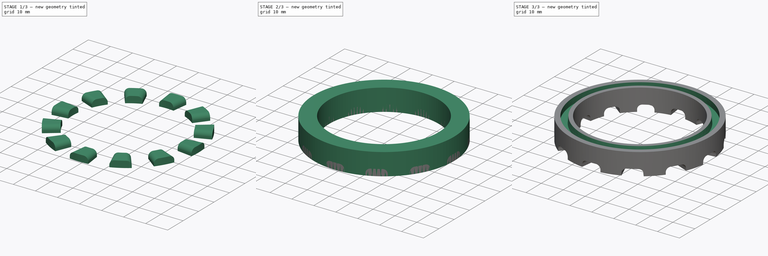
[diagram: build sequence overview — one tinted view per stage of 3, left to right]
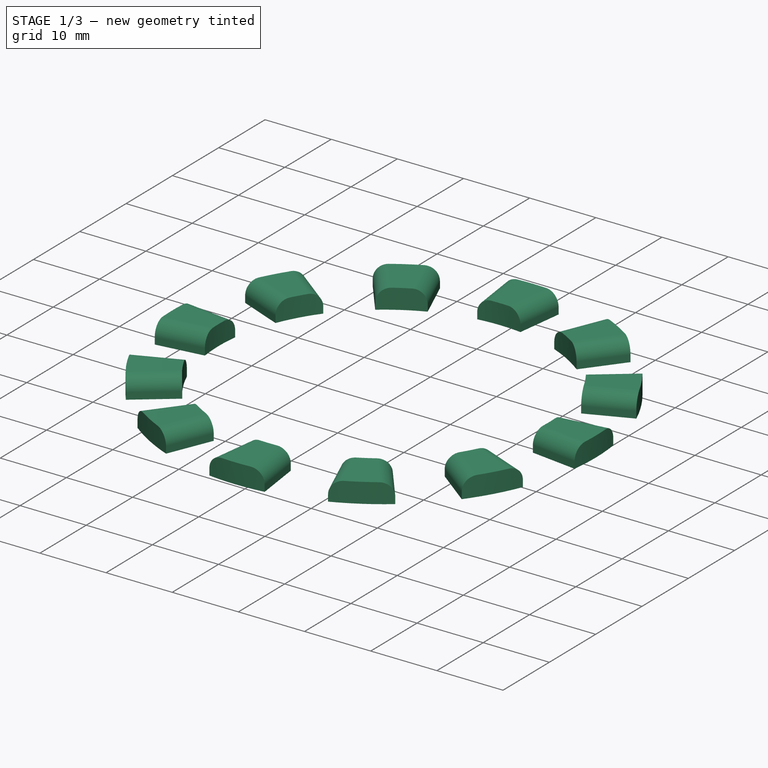
[diagram: stage 1 of 3 — iso view after this stage's code; geometry added in this stage tinted green]
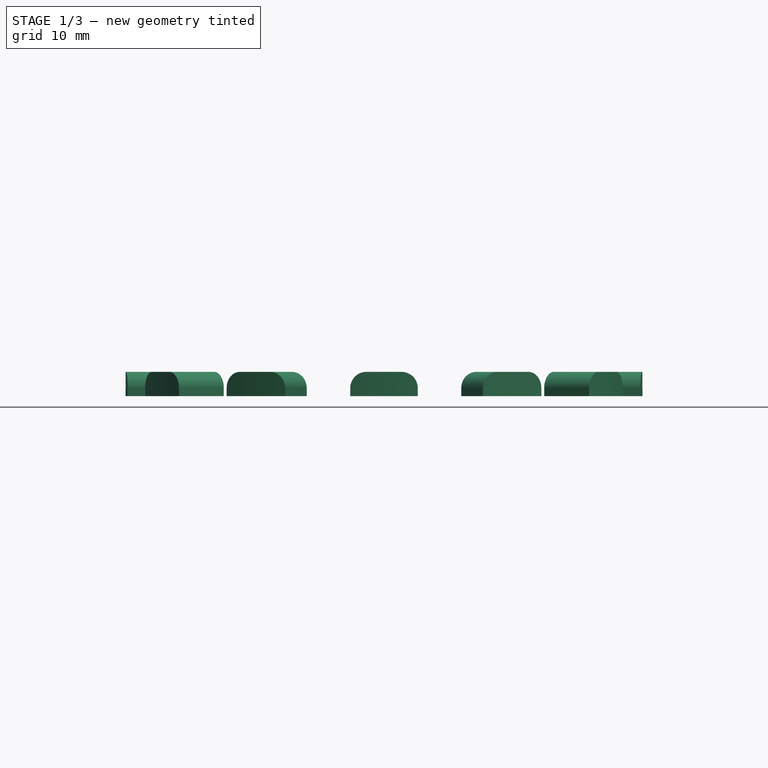
[diagram: stage 1 of 3 — front view after this stage's code; geometry added in this stage tinted green]
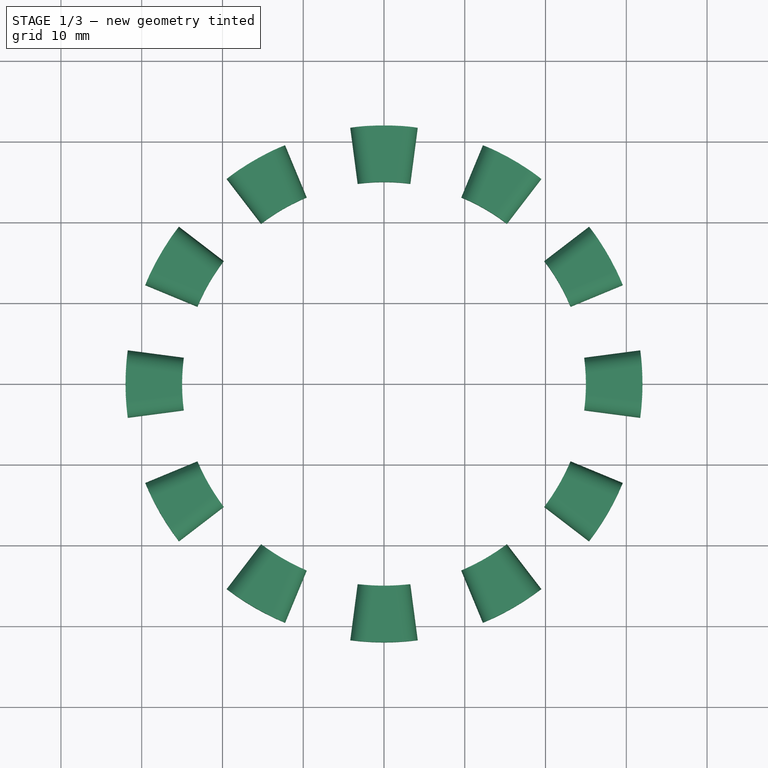
[diagram: stage 1 of 3 — top view after this stage's code; geometry added in this stage tinted green]
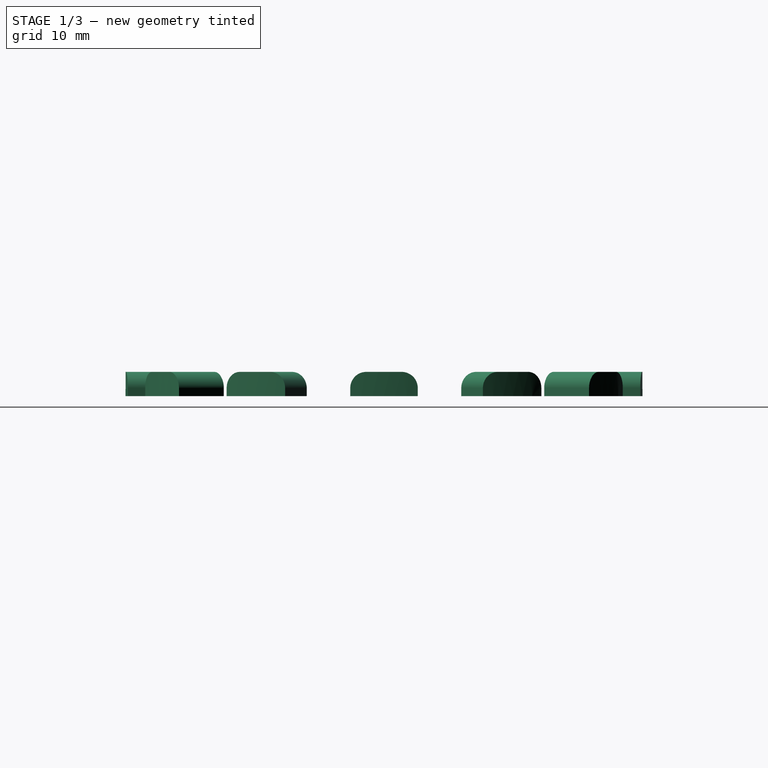
[diagram: stage 1 of 3 — right view after this stage's code; geometry added in this stage tinted green]
FCSTD DOCUMENT  (FreeCAD 0.16R6703 (Git))
Label: bell_cradle
License: CreativeCommons Attribution-ShareAlike
LicenseURL: http://creativecommons.org/licenses/by-sa/4.0/
objects: Sketcher::SketchObject×4, Part::Cut×2, Part::Sweep×2, PartDesign::Pad×1, Part::Cylinder×1, Part::Thickness×1, PartDesign::Fillet×1, Part::FeaturePython×1, Part::Feature×1
note: 15 computed .brp shape members not serialized (recipe doc carries the construction recipe); baked Part::Feature solids carry a one-line shape summary decoded from their .brp

FEATURE [Sketcher::SketchObject] Sketch001
  sketch-geometry (8):
    g0: ArcOfCircle CenterX=0 CenterY=0 CenterZ=0 NormalX=0 NormalY=0 NormalZ=1 Radius=25 StartAngle=3.01069 EndAngle=3.27249
    g1: ArcOfCircle CenterX=0 CenterY=0 CenterZ=0 NormalX=0 NormalY=0 NormalZ=1 Radius=32 StartAngle=3.01069 EndAngle=3.27249
    g2: LineSegment StartX=-31.7262 StartY=4.17684 StartZ=0 EndX=-24.7861 EndY=3.26315 EndZ=0
    g3: LineSegment StartX=-31.7262 StartY=-4.17684 StartZ=0 EndX=-24.7861 EndY=-3.26315 EndZ=0
    g4: LineSegment [constr] StartX=-24.7861 StartY=3.26315 StartZ=0 EndX=0 EndY=0 EndZ=0
    g5: LineSegment [constr] StartX=-24.7861 StartY=-3.26315 StartZ=0 EndX=0 EndY=0 EndZ=0
    g6: LineSegment [constr] StartX=-24.7861 StartY=3.26315 StartZ=0 EndX=-24.7861 EndY=-3.26315 EndZ=0
    g7: Circle [constr] CenterX=0 CenterY=0 CenterZ=0 NormalX=0 NormalY=0 NormalZ=1 Radius=20
  constraints (20):
    c: Coincident(g0,g-1)
    c: Coincident(g1,g-1)
    c: Coincident(g2,g1)
    c: Coincident(g3,g1)
    c: Coincident(g2,g0)
    c: Coincident(g3,g0)
    c: Coincident(g4,g0)
    c: Coincident(g4,g-1)
    c: Coincident(g5,g0)
    c: Coincident(g5,g-1)
    c: Parallel(g2,g4)
    c: Parallel(g3,g5)
    c: Distance(g2) = 7
    c: Radius(g0) = 25
    c: Angle(g4,g5) = 0.261799
    c: Coincident(g6,g0)
    c: Coincident(g6,g0)
    c: Vertical(g6)
    c: Coincident(g7,g-1)
    c: Radius(g7) = 20
FEATURE [PartDesign::Pad] Pad
  Length = 3
  Length2 = 100
  Sketch = -> Sketch001
  Type = 0
FEATURE [PartDesign::Fillet] Fillet
  Base = -> Pad [Edge4,Edge10]
  Radius = 2
FEATURE [Part::FeaturePython] Array  # Draft array (typed FeaturePython)
  Angle = 360
  ArrayType = 1
  Axis = (0,0,1)
  Base = -> Fillet
  Center = (0,0,0)
  Fuse = false
  IntervalAxis = (0,0,0)
  IntervalX = (1,0,0)
  IntervalY = (0,1,0)
  IntervalZ = (0,0,0)
  NumberPolar = 12
  NumberX = 2
  NumberY = 2
  NumberZ = 1
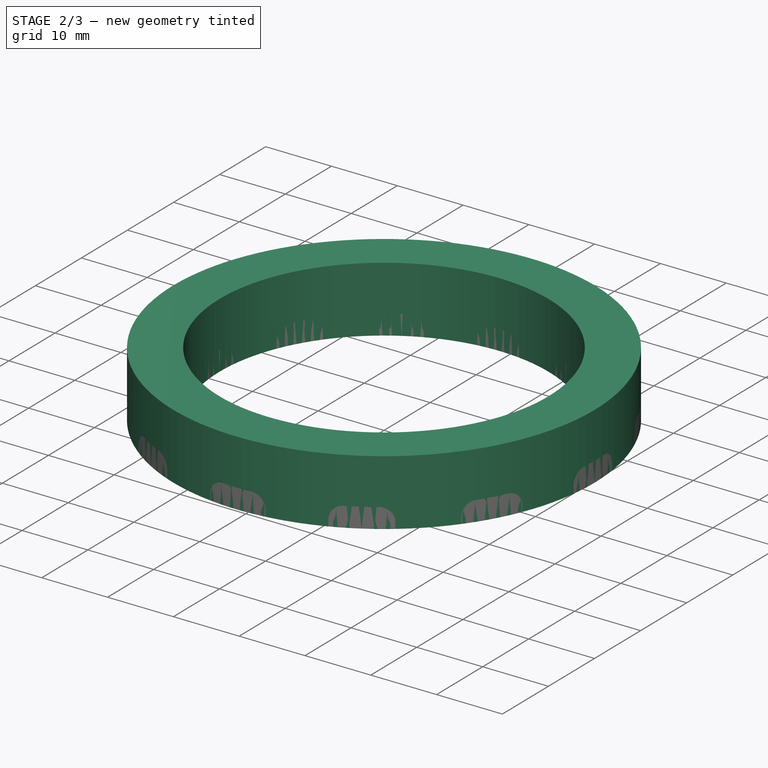
[diagram: stage 2 of 3 — iso view after this stage's code; geometry added in this stage tinted green]
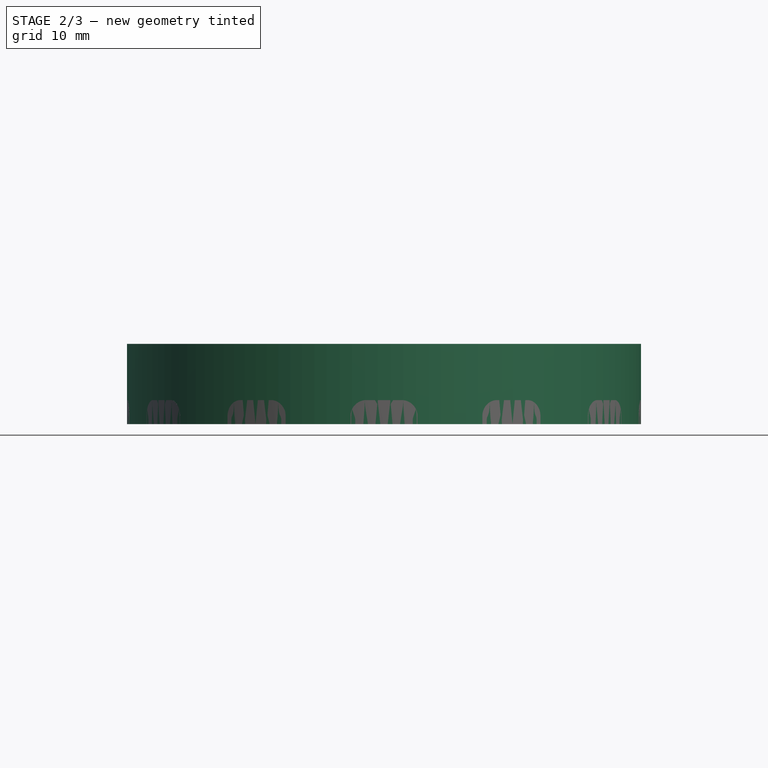
[diagram: stage 2 of 3 — front view after this stage's code; geometry added in this stage tinted green]
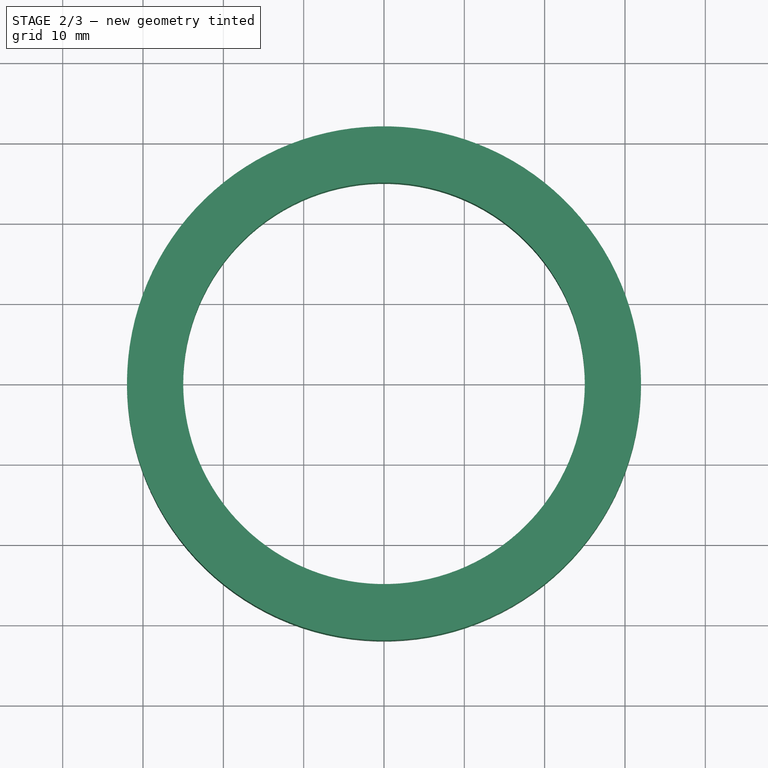
[diagram: stage 2 of 3 — top view after this stage's code; geometry added in this stage tinted green]
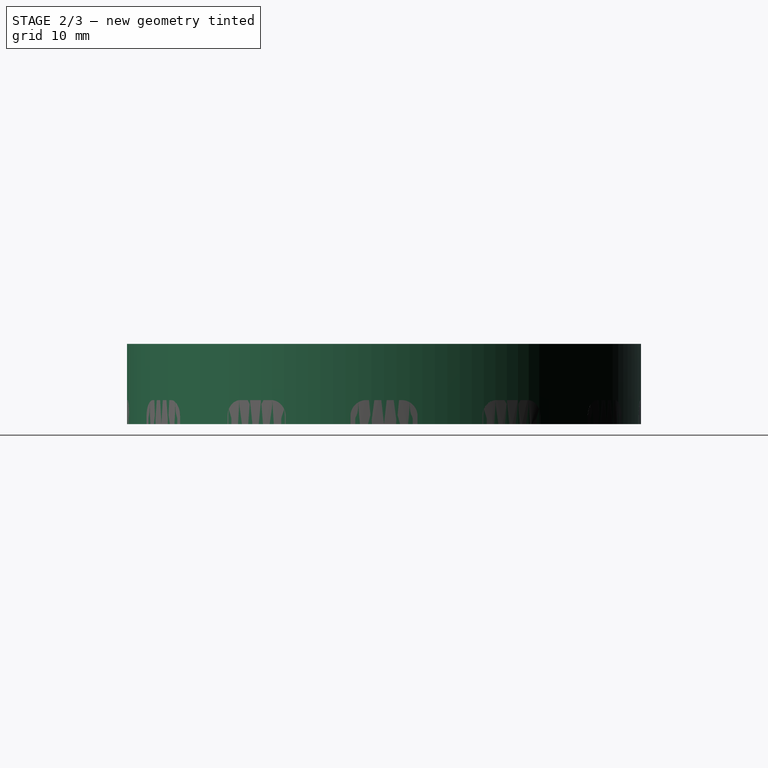
[diagram: stage 2 of 3 — right view after this stage's code; geometry added in this stage tinted green]
FEATURE [Part::Cylinder] Cylinder
  Angle = 360
  Height = 10
  Radius = 32
FEATURE [Part::Thickness] Thickness
  Faces = -> Cylinder [Face2,Face3]
  Intersection = false
  Join = 0
  Mode = 0
  SelfIntersection = false
  Value = -7
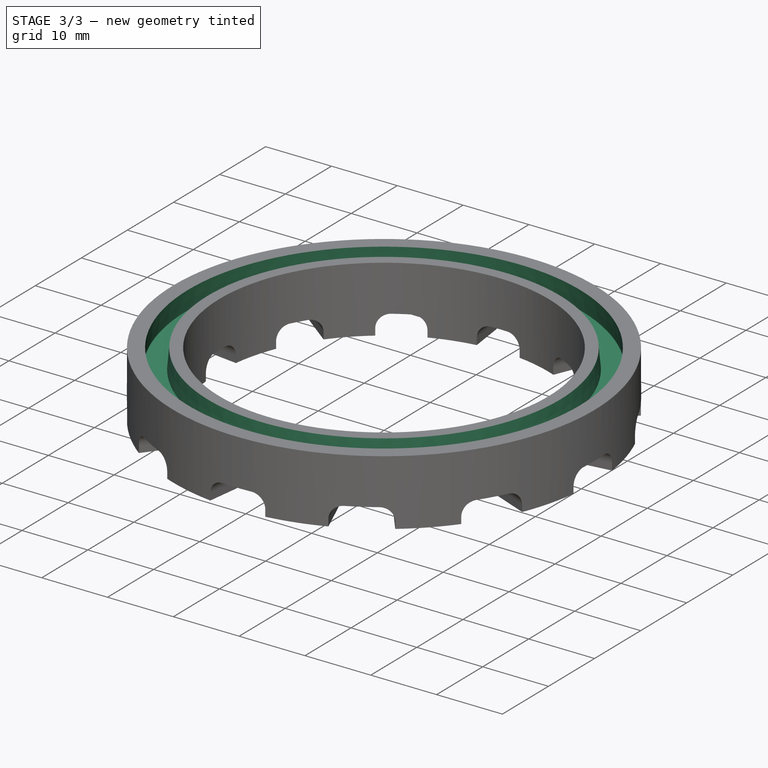
[diagram: stage 3 of 3 — iso view after this stage's code; geometry added in this stage tinted green]
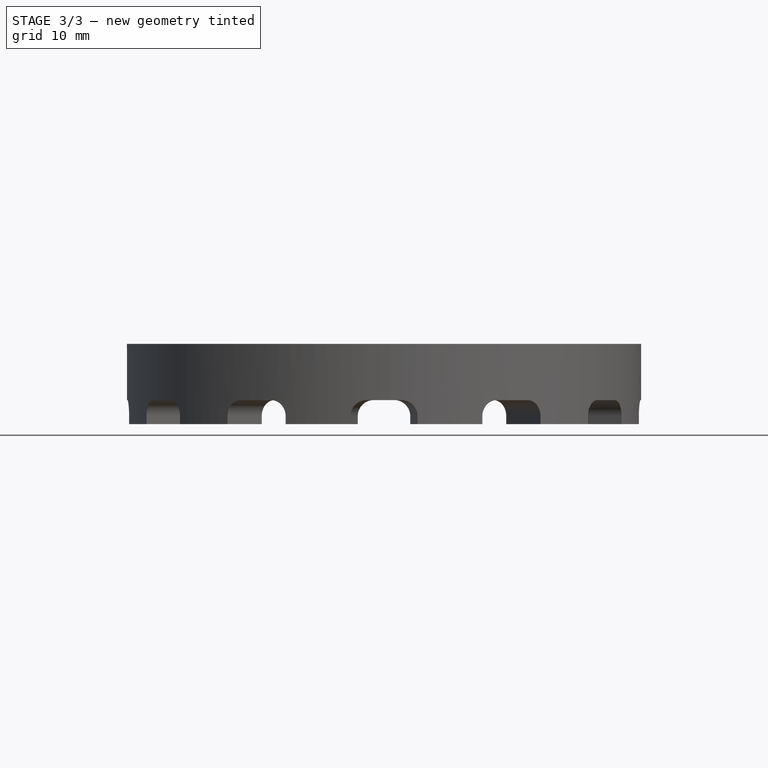
[diagram: stage 3 of 3 — front view after this stage's code; geometry added in this stage tinted green]
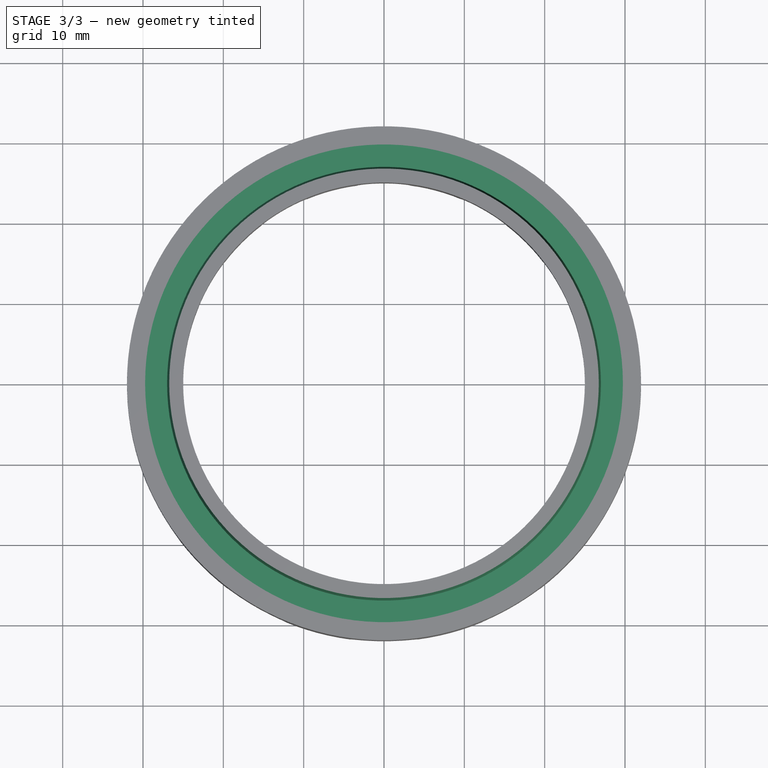
[diagram: stage 3 of 3 — top view after this stage's code; geometry added in this stage tinted green]
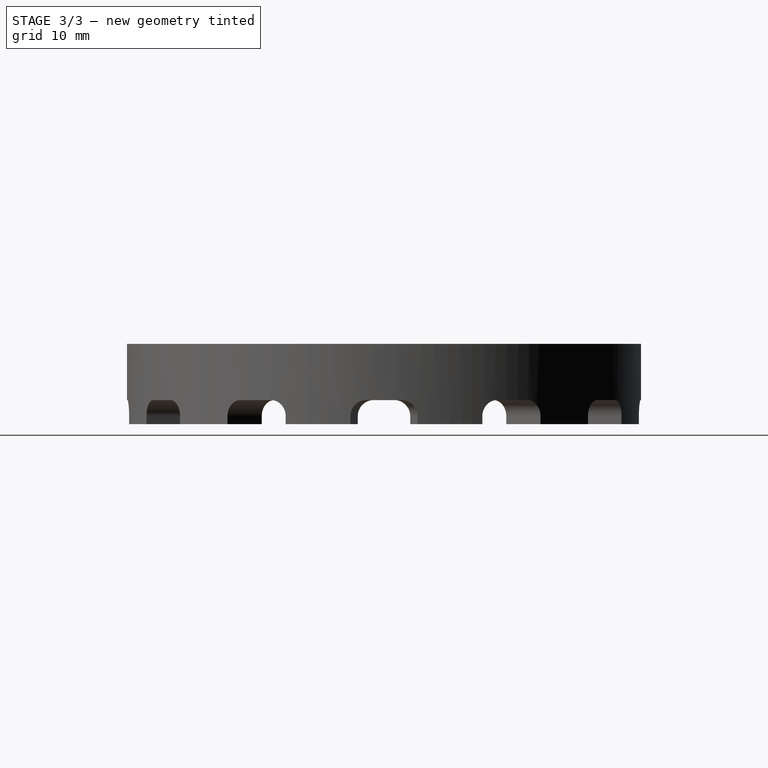
[diagram: stage 3 of 3 — right view after this stage's code; geometry added in this stage tinted green]
FEATURE [Sketcher::SketchObject] Sketch
  ExternalGeometry = -> [Thickness]
  Placement = pos=(0,0,10) rot=(0,0,1;0rad)
  Support = -> Thickness [Face2]
  sketch-geometry (4):
    g0: Circle CenterX=0 CenterY=0 CenterZ=0 NormalX=0 NormalY=0 NormalZ=1 Radius=29.75
    g1: Circle CenterX=0 CenterY=0 CenterZ=0 NormalX=0 NormalY=0 NormalZ=1 Radius=27.25
    g2: LineSegment [constr] StartX=25 StartY=0 StartZ=0 EndX=27.25 EndY=0 EndZ=0
    g3: LineSegment [constr] StartX=32 StartY=0 StartZ=0 EndX=29.75 EndY=0 EndZ=0
  constraints (12):
    c: Coincident(g0,g-1)
    c: Coincident(g1,g-1)
    c: PointOnObject(g2,g-4)
    c: PointOnObject(g2,g1)
    c: Horizontal(g2)
    c: PointOnObject(g3,g-3)
    c: PointOnObject(g3,g0)
    c: Horizontal(g3)
    c: PointOnObject(g2,g-1)
    c: PointOnObject(g3,g-1)
    c: Equal(g3,g2)
    c: DistanceX(g2,g3) = 2.5
FEATURE [Part::Cut] Cut
  Base = -> Thickness
  Tool = -> Array
FEATURE [Sketcher::SketchObject] Sketch002
  Placement = pos=(0,0,0) rot=(0.57735,0.57735,0.57735;2.0944rad)
  sketch-geometry (4):
    g0: LineSegment StartX=26.5626 StartY=12 StartZ=0 EndX=27 EndY=7 EndZ=0
    g1: LineSegment StartX=27 StartY=7 StartZ=0 EndX=30 EndY=7 EndZ=0
    g2: LineSegment StartX=30 StartY=7 StartZ=0 EndX=29.5626 EndY=12 EndZ=0
    g3: LineSegment StartX=29.5626 StartY=12 StartZ=0 EndX=26.5626 EndY=12 EndZ=0
  constraints (13):
    c: Coincident(g0,g1)
    c: Horizontal(g1)
    c: Coincident(g1,g2)
    c: Coincident(g2,g3)
    c: Coincident(g3,g0)
    c: Horizontal(g3)
    c: Parallel(g0,g2)
    c: Angle(g2,g1) = 1.48353
    c: DistanceX(g-1,g0) = 27
    c: Equal(g1,g3)
    c: DistanceY(g-1,g1) = 7
    c: DistanceX(g1,g1) = 3
    c: DistanceY(g1,g2) = 5
FEATURE [Part::Sweep] Sweep
  Frenet = true
  Sections = -> [Sketch002]
  Solid = true
  Spine = -> Cut [Edge221]
  Transition = 1
FEATURE [Part::Cut] Cut001
  Base = -> Cut
  Tool = -> Sweep
FEATURE [Part::Feature] Part__Feature  label="Fillet002"
  shape: bbox 43.3 x 43.3 x 80 mm, 40 faces (baked)
FEATURE [Sketcher::SketchObject] Sketch003
  Placement = pos=(0,0,0) rot=(-1,0,0;4.71239rad)
  sketch-geometry (6):
    g0: LineSegment StartX=-30 StartY=7 StartZ=0 EndX=-27 EndY=7 EndZ=0
    g1: LineSegment StartX=-27 StartY=7 StartZ=0 EndX=-19.2353 EndY=95.7509 EndZ=0
    g2: LineSegment StartX=-19.2353 StartY=95.7509 StartZ=0 EndX=0 EndY=95.7509 EndZ=0
    g3: LineSegment StartX=0 StartY=95.7509 StartZ=0 EndX=0 EndY=98.7509 EndZ=0
    g4: LineSegment StartX=0 StartY=98.7509 StartZ=0 EndX=-21.9728 EndY=98.7509 EndZ=0
    g5: LineSegment StartX=-21.9728 StartY=98.7509 StartZ=0 EndX=-30 EndY=7 EndZ=0
  constraints (17):
    c: Horizontal(g0)
    c: Coincident(g0,g1)
    c: Coincident(g1,g2)
    c: Horizontal(g2)
    c: Coincident(g2,g3)
    c: PointOnObject(g3,g-2)
    c: Coincident(g3,g4)
    c: Horizontal(g4)
    c: Coincident(g4,g5)
    c: Coincident(g5,g0)
    c: PointOnObject(g2,g-2)
    c: Parallel(g5,g1)
    c: Equal(g3,g0)
    c: Angle(g1,g2) = 1.65806
    c: DistanceY(g-1,g0) = 7
    c: DistanceX(g0,g-1) = 27
    c: DistanceX(g0,g0) = 3
FEATURE [Part::Sweep] Sweep001
  Frenet = false
  Sections = -> [Sketch003]
  Solid = false
  Spine = -> Cut001 [Edge226]
  Transition = 1
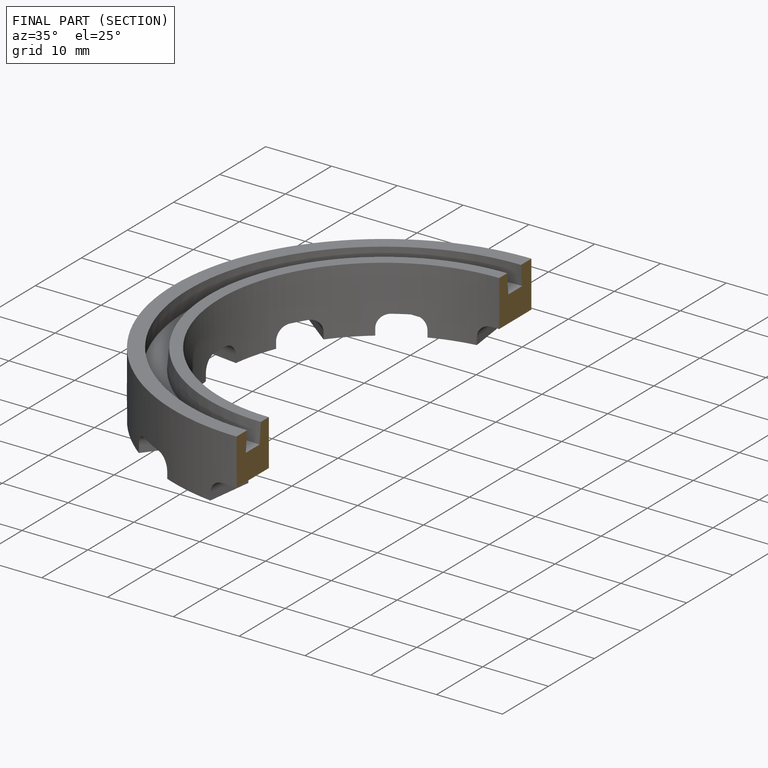
[diagram: finished part — half-section view (interior)]
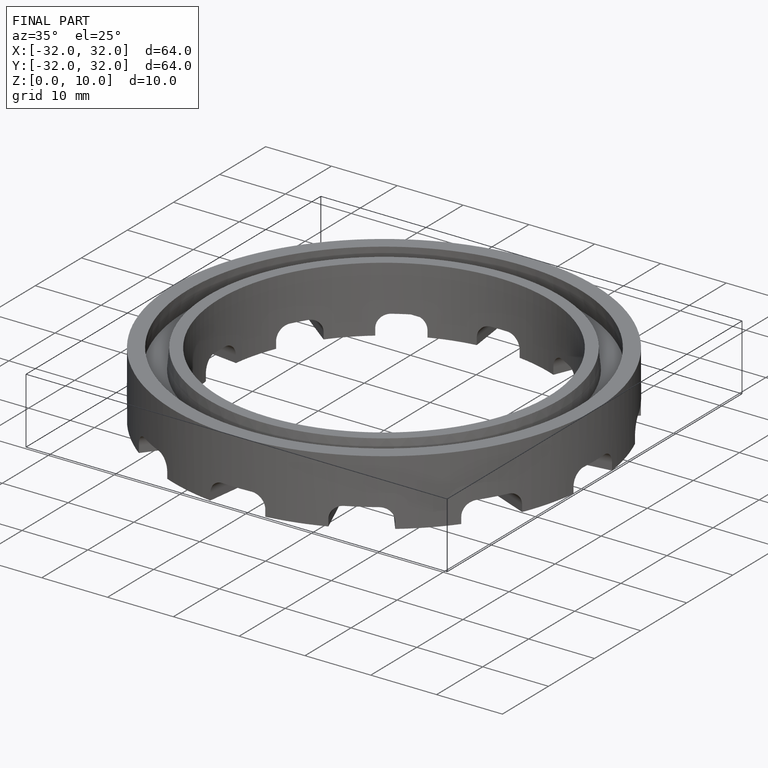
[diagram: finished part — iso view with bounding-box wireframe]
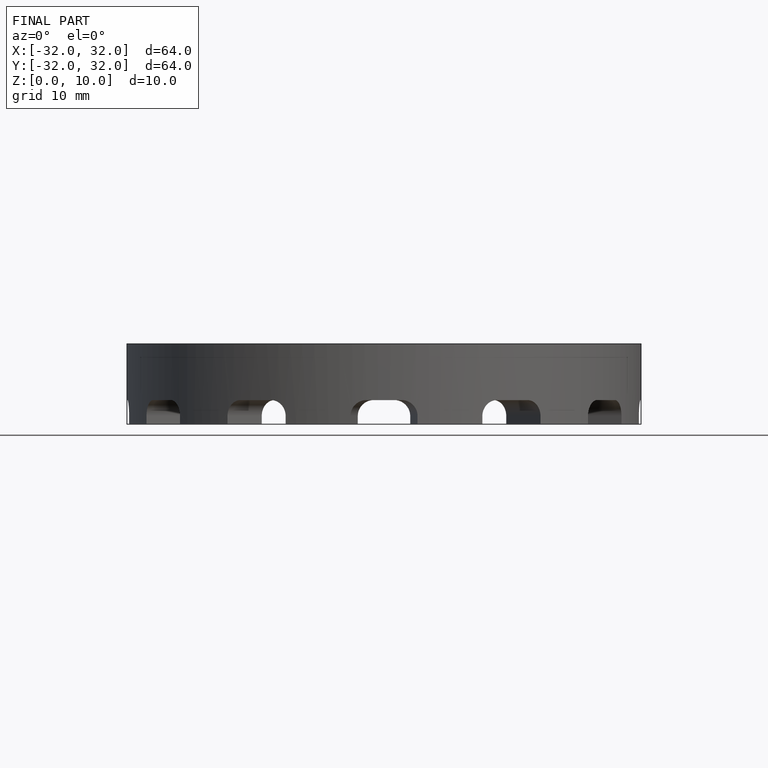
[diagram: finished part — front view with bounding-box wireframe]
